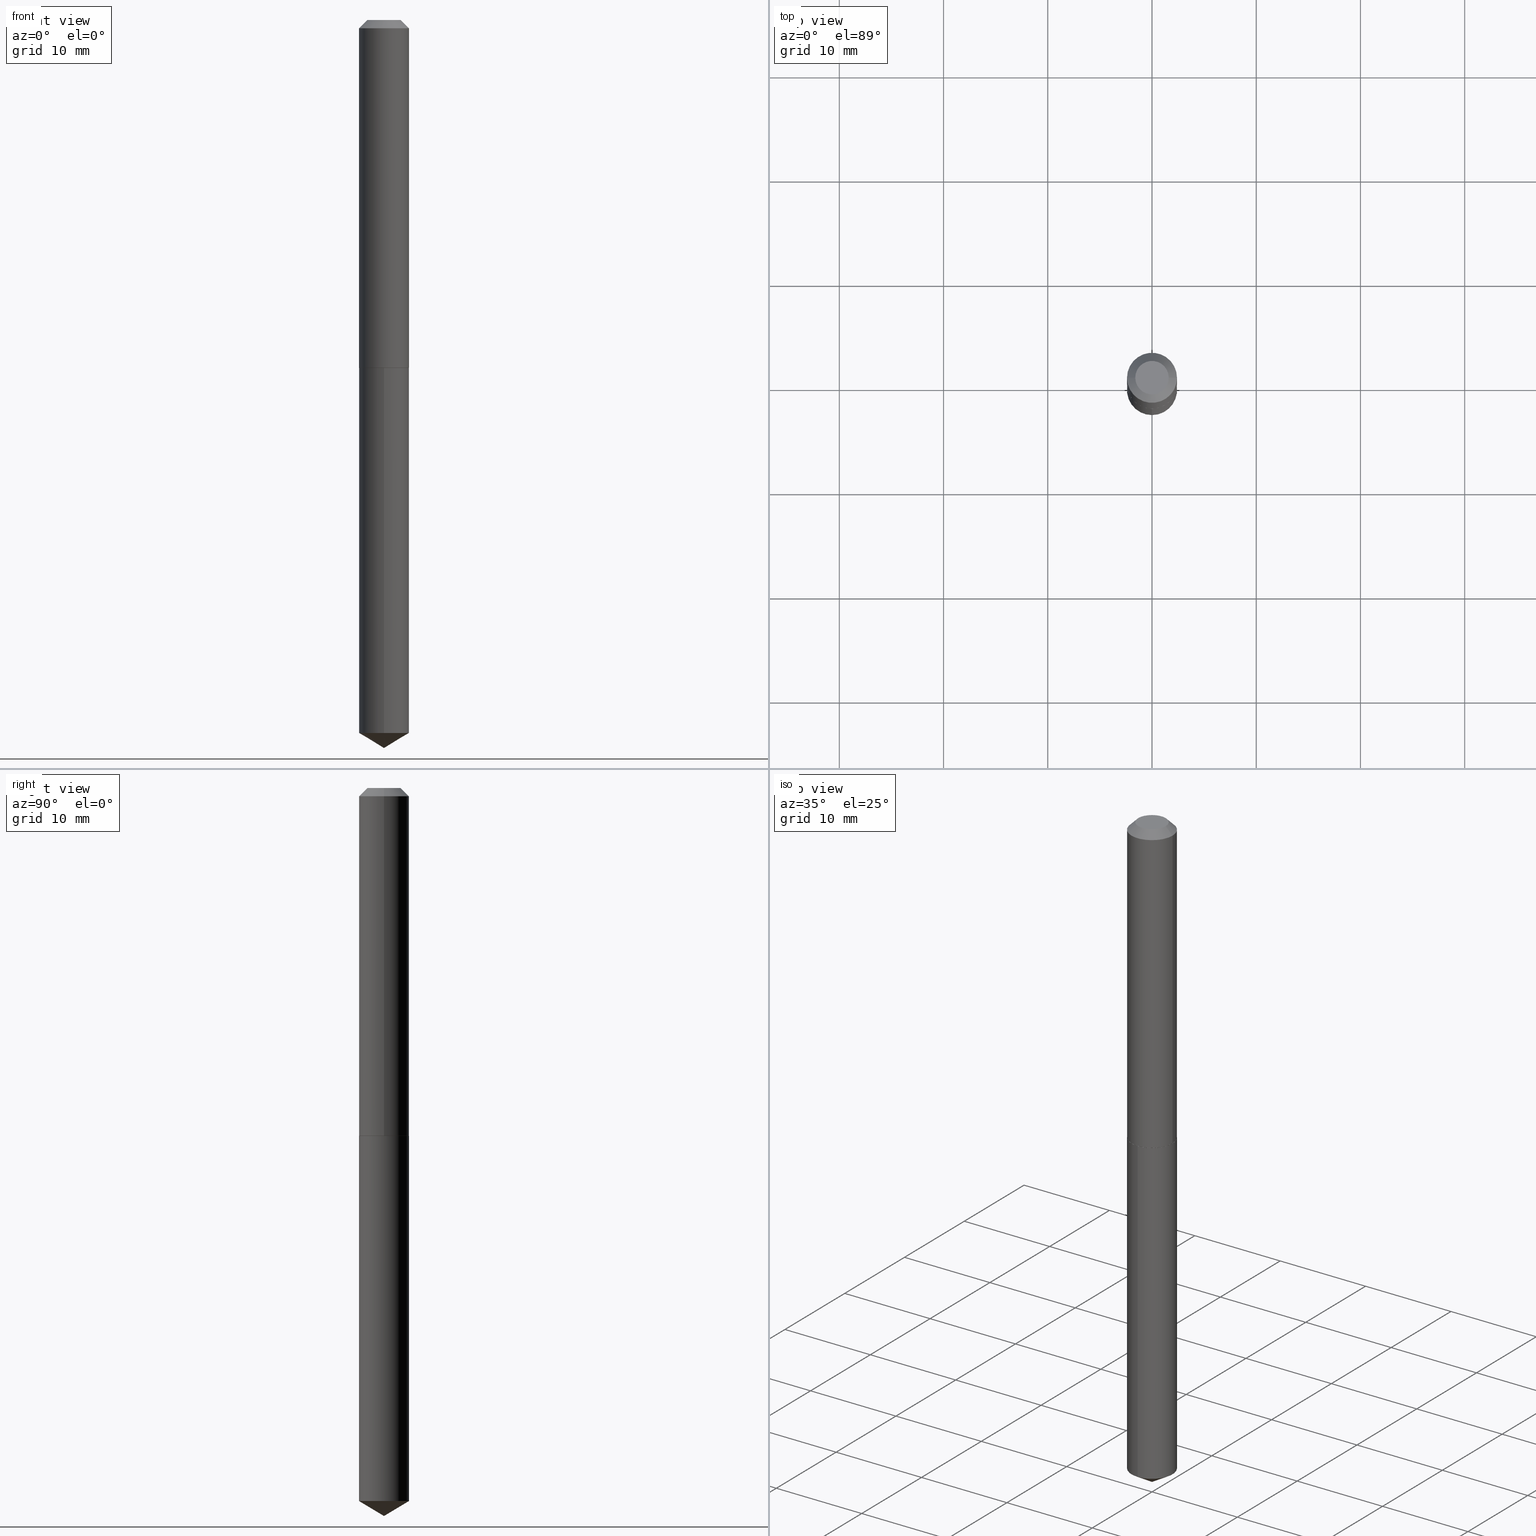
[diagram: canonical four-view strip — front | top / right | iso, engineering-drawing reading convention]
A machine part, canonical four-view strip (front | top / right | iso — engineering-drawing reading convention). The complete STEP part file that produces these views, byte-faithful:
ISO-10303-21;
HEADER;
FILE_DESCRIPTION (( 'STEP AP203' ),
    '1' );
FILE_NAME ('51012.STEP',
    '2024-04-22T18:12:53',
    ( '' ),
    ( '' ),
    'SwSTEP 2.0',
    'SolidWorks 2023',
    '' );
FILE_SCHEMA (( 'CONFIG_CONTROL_DESIGN' ));
ENDSEC;

DATA;
#1 = ORIENTED_EDGE ( 'NONE', *, *, #254, .T. ) ;
#2 = VERTEX_POINT ( 'NONE', #276 ) ;
#3 = VERTEX_POINT ( 'NONE', #121 ) ;
#4 = DIRECTION ( 'NONE',  ( 1.000000000000000000, -6.982962677686267499E-15, 4.876183683204856601E-29 ) ) ;
#5 = AXIS2_PLACEMENT_3D ( 'NONE', #156, #344, #281 ) ;
#6 = DIRECTION ( 'NONE',  ( -6.982962677686265922E-15, -1.000000000000000000, 5.781688875479922944E-15 ) ) ;
#7 = CC_DESIGN_PERSON_AND_ORGANIZATION_ASSIGNMENT ( #258, #351, ( #373 ) ) ;
#8 = DIRECTION ( 'NONE',  ( 2.445468806185136597E-29, -3.491481338843145583E-15, -1.000000000000000000 ) ) ;
#9 = DIRECTION ( 'NONE',  ( -2.445468806185136597E-29, 3.491481338843145583E-15, 1.000000000000000000 ) ) ;
#10 = FACE_OUTER_BOUND ( 'NONE', #274, .T. ) ;
#11 = DIRECTION ( 'NONE',  ( 0.7071067811866199593, -2.468850131083015945E-15, 0.7071067811864750752 ) ) ;
#12 = DIRECTION ( 'NONE',  ( -6.982962677686264344E-15, -1.000000000000000000, 3.468864327941586720E-15 ) ) ;
#13 = AXIS2_PLACEMENT_3D ( 'NONE', #366, #90, #209 ) ;
#14 = CARTESIAN_POINT ( 'NONE',  ( 0.09450000000000008393, -6.598899730413527051E-16, 4.607987053127163164E-30 ) ) ;
#15 = ADVANCED_FACE ( 'NONE', ( #94 ), #84, .T. ) ;
#16 = DIRECTION ( 'NONE',  ( 1.000000000000000000, -6.982962677686270655E-15, 0.000000000000000000 ) ) ;
#17 =( CONVERSION_BASED_UNIT ( 'INCH', #43 ) LENGTH_UNIT ( ) NAMED_UNIT ( #143 ) );
#18 = DIRECTION ( 'NONE',  ( 0.000000000000000000, 0.000000000000000000, 1.000000000000000000 ) ) ;
#19 = EDGE_CURVE ( 'NONE', #294, #150, #277, .T. ) ;
#20 = VERTEX_POINT ( 'NONE', #246 ) ;
#21 = APPROVAL_STATUS ( 'not_yet_approved' ) ;
#22 = ORIENTED_EDGE ( 'NONE', *, *, #77, .T. ) ;
#23 = DIRECTION ( 'NONE',  ( 1.000000000000000000, 0.000000000000000000, 0.000000000000000000 ) ) ;
#24 = ORIENTED_EDGE ( 'NONE', *, *, #287, .F. ) ;
#25 = CC_DESIGN_PERSON_AND_ORGANIZATION_ASSIGNMENT ( #223, #356, ( #191 ) ) ;
#26 = VERTEX_POINT ( 'NONE', #187 ) ;
#27 = CONICAL_SURFACE ( 'NONE', #132, 0.09450000000000013944, 0.7853981633975507526 ) ;
#28 = AXIS2_PLACEMENT_3D ( 'NONE', #68, #314, #182 ) ;
#29 = EDGE_LOOP ( 'NONE', ( #387, #295, #1, #80 ) ) ;
#30 = CARTESIAN_POINT ( 'NONE',  ( 0.000000000000000000, 0.000000000000000000, 0.000000000000000000 ) ) ;
#31 = ORIENTED_EDGE ( 'NONE', *, *, #266, .F. ) ;
#32 = LINE ( 'NONE', #211, #296 ) ;
#33 = CARTESIAN_POINT ( 'NONE',  ( 6.725033957920020954E-29, -9.601582967002698114E-15, -2.750000000000000000 ) ) ;
#34 = CARTESIAN_POINT ( 'NONE',  ( 3.213346011327268506E-29, -4.587806479239892817E-15, -1.313999999999999613 ) ) ;
#35 = AXIS2_PLACEMENT_3D ( 'NONE', #98, #313, #40 ) ;
#36 = CARTESIAN_POINT ( 'NONE',  ( 0.09450000000000013944, -5.245950711611824906E-15, -1.313500000000000112 ) ) ;
#37 = DIRECTION ( 'NONE',  ( -2.445415660206723986E-29, 3.491557446909113942E-15, 1.000000000000000000 ) ) ;
#38 = FACE_OUTER_BOUND ( 'NONE', #301, .T. ) ;
#39 = DIRECTION ( 'NONE',  ( -2.445415660206723705E-29, 3.491557446909113942E-15, 1.000000000000000000 ) ) ;
#40 = DIRECTION ( 'NONE',  ( 1.000000000000000000, -6.982962677686265922E-15, 0.000000000000000000 ) ) ;
#41 = CC_DESIGN_DATE_AND_TIME_ASSIGNMENT ( #220, #227, ( #373 ) ) ;
#42 = CLOSED_SHELL ( 'NONE', ( #340, #181, #249, #348, #368, #15, #81, #236 ) ) ;
#43 = LENGTH_MEASURE_WITH_UNIT ( LENGTH_MEASURE( 0.02539999999999999897 ), #352 );
#44 = CIRCLE ( 'NONE', #268, 0.09449999999999998679 ) ;
#45 = APPROVAL_PERSON_ORGANIZATION ( #195, #125, #324 ) ;
#46 = APPROVAL_ROLE ( '' ) ;
#47 = DIRECTION ( 'NONE',  ( 2.438088387897960049E-29, -3.491481338843145188E-15, -1.000000000000000000 ) ) ;
#48 = ORIENTED_EDGE ( 'NONE', *, *, #218, .F. ) ;
#49 = CC_DESIGN_PERSON_AND_ORGANIZATION_ASSIGNMENT ( #318, #257, ( #171 ) ) ;
#50 = CARTESIAN_POINT ( 'NONE',  ( -0.09449999999999998679, 5.507811812025032100E-16, -0.03125000000000019429 ) ) ;
#51 = PRODUCT_DEFINITION_SHAPE ( 'NONE', 'NONE',  #191 ) ;
#52 = EDGE_LOOP ( 'NONE', ( #54, #307, #48, #24 ) ) ;
#53 = ORIENTED_EDGE ( 'NONE', *, *, #278, .T. ) ;
#54 = ORIENTED_EDGE ( 'NONE', *, *, #136, .T. ) ;
#55 = AXIS2_PLACEMENT_3D ( 'NONE', #146, #141, #82 ) ;
#56 = CARTESIAN_POINT ( 'NONE',  ( -0.09450000000000008393, 6.714628852932952720E-16, -4.648393660290889834E-30 ) ) ;
#57 = CIRCLE ( 'NONE', #263, 0.09400000000000041656 ) ;
#58 = CARTESIAN_POINT ( 'NONE',  ( 3.212123276924177386E-29, -4.586060738570472102E-15, -1.313500000000000112 ) ) ;
#59 = ORIENTED_EDGE ( 'NONE', *, *, #139, .F. ) ;
#60 = CARTESIAN_POINT ( 'NONE',  ( 2.994835545909338206E-48, -4.275831445896990567E-34, -1.224646799147357958E-19 ) ) ;
#61 = DIRECTION ( 'NONE',  ( -1.000000000000000000, 6.982962677686266711E-15, 0.000000000000000000 ) ) ;
#62 = EDGE_CURVE ( 'NONE', #78, #20, #32, .T. ) ;
#63 = CARTESIAN_POINT ( 'NONE',  ( 7.642090019328598283E-31, -1.091087918388489651E-16, -0.03125000000000019429 ) ) ;
#64 = DIRECTION ( 'NONE',  ( 1.000000000000000000, -6.982962677686265922E-15, 0.000000000000000000 ) ) ;
#65 = FACE_OUTER_BOUND ( 'NONE', #83, .T. ) ;
#66 = EDGE_LOOP ( 'NONE', ( #147, #177, #334, #59 ) ) ;
#67 = ADVANCED_FACE ( 'NONE', ( #241 ), #92, .T. ) ;
#68 = CARTESIAN_POINT ( 'NONE',  ( 3.213346011327269067E-29, -4.587806479239893606E-15, -1.314000000000000057 ) ) ;
#69 = DATE_AND_TIME ( #166, #327 ) ;
#70 = APPROVAL ( #131, 'UNSPECIFIED' ) ;
#71 = PERSON_AND_ORGANIZATION ( #233, #224 ) ;
#72 = DIRECTION ( 'NONE',  ( -2.445468806185136597E-29, 3.491481338843145583E-15, 1.000000000000000000 ) ) ;
#73 = COORDINATED_UNIVERSAL_TIME_OFFSET ( 5, 0, .BEHIND. ) ;
#74 = AXIS2_PLACEMENT_3D ( 'NONE', #60, #304, #4 ) ;
#75 = ORIENTED_EDGE ( 'NONE', *, *, #139, .T. ) ;
#76 = CIRCLE ( 'NONE', #154, 0.09449999999999998679 ) ;
#77 = EDGE_CURVE ( 'NONE', #20, #273, #159, .T. ) ;
#78 = VERTEX_POINT ( 'NONE', #337 ) ;
#79 = LINE ( 'NONE', #50, #284 ) ;
#80 = ORIENTED_EDGE ( 'NONE', *, *, #326, .T. ) ;
#81 = ADVANCED_FACE ( 'NONE', ( #309 ), #120, .T. ) ;
#82 = DIRECTION ( 'NONE',  ( 6.982962677686265922E-15, 1.000000000000000000, -3.491557446909113942E-15 ) ) ;
#83 = EDGE_LOOP ( 'NONE', ( #302, #357 ) ) ;
#84 = CYLINDRICAL_SURFACE ( 'NONE', #240, 0.09450000000000008393 ) ;
#85 = CIRCLE ( 'NONE', #383, 0.09449999999999998679 ) ;
#86 = ORIENTED_EDGE ( 'NONE', *, *, #254, .F. ) ;
#87 = DIRECTION ( 'NONE',  ( -5.985567269335945224E-15, -0.8571673007021108903, 0.5150380749100562650 ) ) ;
#88 = DIRECTION ( 'NONE',  ( -2.445415660206723986E-29, 3.491557446909113942E-15, 1.000000000000000000 ) ) ;
#89 = EDGE_CURVE ( 'NONE', #294, #2, #145, .T. ) ;
#90 = DIRECTION ( 'NONE',  ( -2.445415660206723986E-29, 3.491557446909113942E-15, 1.000000000000000000 ) ) ;
#91 = CARTESIAN_POINT ( 'NONE',  ( -0.09400000000000041656, -3.917247080451286059E-15, -1.313999999999999613 ) ) ;
#92 = CYLINDRICAL_SURFACE ( 'NONE', #163, 0.09449999999999998679 ) ;
#93 = MANIFOLD_SOLID_BREP ( 'Body-Move/Copy2[2]', #42 ) ;
#94 = FACE_OUTER_BOUND ( 'NONE', #298, .T. ) ;
#95 = EDGE_CURVE ( 'NONE', #330, #204, #180, .T. ) ;
#96 = CARTESIAN_POINT ( 'NONE',  ( 6.724893065568490610E-29, -9.601782979000062649E-15, -2.750000000000000000 ) ) ;
#97 = APPROVAL_PERSON_ORGANIZATION ( #317, #119, #192 ) ;
#98 = CARTESIAN_POINT ( 'NONE',  ( 3.212123276924177386E-29, -4.586060738570472102E-15, -1.313500000000000112 ) ) ;
#99 = DIRECTION ( 'NONE',  ( -2.445468806185136877E-29, 3.491481338843145188E-15, 1.000000000000000000 ) ) ;
#100 = COORDINATED_UNIVERSAL_TIME_OFFSET ( 5, 0, .BEHIND. ) ;
#101 = FACE_OUTER_BOUND ( 'NONE', #303, .T. ) ;
#102 = CONICAL_SURFACE ( 'NONE', #152, 65.52281426576857370, 1.029744258676655422 ) ;
#103 = DATE_AND_TIME ( #320, #110 ) ;
#104 = AXIS2_PLACEMENT_3D ( 'NONE', #247, #122, #130 ) ;
#105 = PERSON_AND_ORGANIZATION_ROLE ( 'design_supplier' ) ;
#106 = DATE_AND_TIME ( #133, #256 ) ;
#107 = COORDINATED_UNIVERSAL_TIME_OFFSET ( 5, 0, .BEHIND. ) ;
#108 = CC_DESIGN_PERSON_AND_ORGANIZATION_ASSIGNMENT ( #381, #197, ( #172 ) ) ;
#109 = EDGE_LOOP ( 'NONE', ( #325, #114, #363, #335 ) ) ;
#110 = LOCAL_TIME ( 14, 12, 53.00000000000000000, #293 ) ;
#111 = APPROVAL_DATE_TIME ( #261, #125 ) ;
#112 = AXIS2_PLACEMENT_3D ( 'NONE', #225, #47, #382 ) ;
#113 = FACE_OUTER_BOUND ( 'NONE', #52, .T. ) ;
#114 = ORIENTED_EDGE ( 'NONE', *, *, #62, .T. ) ;
#115 = CARTESIAN_POINT ( 'NONE',  ( 3.212123276924177386E-29, -4.586060738570472102E-15, -1.313500000000000112 ) ) ;
#116 = FACE_OUTER_BOUND ( 'NONE', #239, .T. ) ;
#117 = EDGE_LOOP ( 'NONE', ( #230, #299, #329, #86 ) ) ;
#118 = DIRECTION ( 'NONE',  ( 0.7071067811865453523, -7.319954787623248157E-15, -0.7071067811865496822 ) ) ;
#119 = APPROVAL ( #134, 'UNSPECIFIED' ) ;
#120 = CONICAL_SURFACE ( 'NONE', #260, 0.09449999999999998679, 0.7853981633974452814 ) ;
#121 = CARTESIAN_POINT ( 'NONE',  ( 0.09400000000000041656, -5.244204970942404980E-15, -1.313999999999999613 ) ) ;
#122 = DIRECTION ( 'NONE',  ( 2.445468806185136597E-29, -3.491481338843145583E-15, -1.000000000000000000 ) ) ;
#123 = DIRECTION ( 'NONE',  ( -6.982962677686265922E-15, -1.000000000000000000, 2.890844437739961472E-15 ) ) ;
#124 = DIRECTION ( 'NONE',  ( 1.000000000000000000, -6.982962677686266711E-15, 0.000000000000000000 ) ) ;
#125 = APPROVAL ( #21, 'UNSPECIFIED' ) ;
#126 = DIRECTION ( 'NONE',  ( -2.445468806185136597E-29, 3.491481338843145583E-15, 1.000000000000000000 ) ) ;
#127 = DIRECTION ( 'NONE',  ( 1.000000000000000000, -6.982962677686265922E-15, 4.876176775795935793E-29 ) ) ;
#128 = CARTESIAN_POINT ( 'NONE',  ( -6.598899730413198687E-16, -0.09450000000000458034, -1.313999999999999613 ) ) ;
#129 = LOCAL_TIME ( 14, 12, 53.00000000000000000, #231 ) ;
#130 = DIRECTION ( 'NONE',  ( -1.000000000000000000, 6.982962677686266711E-15, 0.000000000000000000 ) ) ;
#131 = APPROVAL_STATUS ( 'not_yet_approved' ) ;
#132 = AXIS2_PLACEMENT_3D ( 'NONE', #58, #140, #264 ) ;
#133 = CALENDAR_DATE ( 2024, 22, 4 ) ;
#134 = APPROVAL_STATUS ( 'not_yet_approved' ) ;
#135 = FACE_OUTER_BOUND ( 'NONE', #328, .T. ) ;
#136 = EDGE_CURVE ( 'NONE', #3, #322, #378, .T. ) ;
#137 = CIRCLE ( 'NONE', #5, 0.06324999999999998679 ) ;
#138 = CALENDAR_DATE ( 2024, 22, 4 ) ;
#139 = EDGE_CURVE ( 'NONE', #206, #26, #198, .T. ) ;
#140 = DIRECTION ( 'NONE',  ( -2.445468806185136597E-29, 3.491481338843145583E-15, 1.000000000000000000 ) ) ;
#141 = DIRECTION ( 'NONE',  ( 2.445415660206723425E-29, -3.491557446909113942E-15, -1.000000000000000000 ) ) ;
#142 = VECTOR ( 'NONE', #216, 39.37007874015748143 ) ;
#143 = DIMENSIONAL_EXPONENTS ( 1.000000000000000000, 0.000000000000000000, 0.000000000000000000, 0.000000000000000000, 0.000000000000000000, 0.000000000000000000, 0.000000000000000000 ) ;
#144 = ORIENTED_EDGE ( 'NONE', *, *, #165, .T. ) ;
#145 = LINE ( 'NONE', #148, #228 ) ;
#146 = CARTESIAN_POINT ( 'NONE',  ( 3.213346011327269067E-29, -4.587806479239893606E-15, -1.314000000000000057 ) ) ;
#147 = ORIENTED_EDGE ( 'NONE', *, *, #333, .F. ) ;
#148 = CARTESIAN_POINT ( 'NONE',  ( 0.09449999999999998679, -7.574258526282586471E-16, -0.03125000000000019429 ) ) ;
#149 = EDGE_CURVE ( 'NONE', #206, #179, #331, .T. ) ;
#150 = VERTEX_POINT ( 'NONE', #369 ) ;
#151 = DIRECTION ( 'NONE',  ( -2.445415660206723705E-29, 3.491557446909113942E-15, 1.000000000000000000 ) ) ;
#152 = AXIS2_PLACEMENT_3D ( 'NONE', #221, #343, #186 ) ;
#153 = DIRECTION ( 'NONE',  ( 1.000000000000000000, -6.982962677686270655E-15, 0.000000000000000000 ) ) ;
#154 = AXIS2_PLACEMENT_3D ( 'NONE', #188, #158, #242 ) ;
#155 = EDGE_CURVE ( 'NONE', #78, #204, #85, .T. ) ;
#156 = CARTESIAN_POINT ( 'NONE',  ( 2.994835545909338206E-48, -4.275831445896990567E-34, -1.224646799147357958E-19 ) ) ;
#157 = DIRECTION ( 'NONE',  ( -2.445415660206723986E-29, 3.491557446909113942E-15, 1.000000000000000000 ) ) ;
#158 = DIRECTION ( 'NONE',  ( -2.445415660206723986E-29, 3.491557446909113942E-15, 1.000000000000000000 ) ) ;
#159 = CIRCLE ( 'NONE', #13, 0.09449999999999998679 ) ;
#160 = DIRECTION ( 'NONE',  ( -2.445468806185136597E-29, 3.491481338843145583E-15, 1.000000000000000000 ) ) ;
#161 = ADVANCED_BREP_SHAPE_REPRESENTATION ( '51012', ( #222, #93, #270 ), #390 ) ;
#162 =( NAMED_UNIT ( * ) SI_UNIT ( $, .STERADIAN. ) SOLID_ANGLE_UNIT ( ) );
#163 = AXIS2_PLACEMENT_3D ( 'NONE', #311, #339, #123 ) ;
#164 = VECTOR ( 'NONE', #99, 39.37007874015748143 ) ;
#165 = EDGE_CURVE ( 'NONE', #150, #294, #137, .T. ) ;
#166 = CALENDAR_DATE ( 2024, 22, 4 ) ;
#167 = ORIENTED_EDGE ( 'NONE', *, *, #218, .T. ) ;
#168 = APPROVAL_DATE_TIME ( #103, #70 ) ;
#169 = ORIENTED_EDGE ( 'NONE', *, *, #149, .T. ) ;
#170 = VECTOR ( 'NONE', #244, 39.37007874015748143 ) ;
#171 = PRODUCT_DEFINITION_FORMATION_WITH_SPECIFIED_SOURCE ( 'ANY', '', #172, .NOT_KNOWN. ) ;
#172 = PRODUCT ( '51012', '51012', '', ( #288 ) ) ;
#173 = ORIENTED_EDGE ( 'NONE', *, *, #149, .F. ) ;
#174 = CARTESIAN_POINT ( 'NONE',  ( -0.09449999999999998679, -1.676121879911364540E-15, -0.03125000000000019429 ) ) ;
#175 = ORIENTED_EDGE ( 'NONE', *, *, #326, .F. ) ;
#176 = ADVANCED_FACE ( 'NONE', ( #10 ), #265, .F. ) ;
#177 = ORIENTED_EDGE ( 'NONE', *, *, #386, .T. ) ;
#178 = ORIENTED_EDGE ( 'NONE', *, *, #362, .T. ) ;
#179 = VERTEX_POINT ( 'NONE', #174 ) ;
#180 = LINE ( 'NONE', #214, #248 ) ;
#181 = ADVANCED_FACE ( 'NONE', ( #116 ), #212, .T. ) ;
#182 = DIRECTION ( 'NONE',  ( -6.982962677686265922E-15, -1.000000000000000000, 2.890844437739961472E-15 ) ) ;
#183 = AXIS2_PLACEMENT_3D ( 'NONE', #306, #88, #6 ) ;
#184 = CARTESIAN_POINT ( 'NONE',  ( 6.586108949467517170E-29, -9.403427702638431539E-15, -2.693218671501895756 ) ) ;
#185 = DIRECTION ( 'NONE',  ( 1.000000000000000000, -6.982962677686265922E-15, 0.000000000000000000 ) ) ;
#186 = DIRECTION ( 'NONE',  ( -6.982962677686264344E-15, -1.000000000000000000, 3.468864327941586720E-15 ) ) ;
#187 = CARTESIAN_POINT ( 'NONE',  ( 0.09450000000000013944, -5.245950711611824906E-15, -1.313500000000000112 ) ) ;
#188 = CARTESIAN_POINT ( 'NONE',  ( 3.213346011327269067E-29, -4.587806479239893606E-15, -1.314000000000000057 ) ) ;
#189 = CARTESIAN_POINT ( 'NONE',  ( -0.09450000000000013944, -3.914597853277176436E-15, -1.313500000000000112 ) ) ;
#190 = CIRCLE ( 'NONE', #35, 0.09450000000000013944 ) ;
#191 = PRODUCT_DEFINITION ( 'UNKNOWN', '', #171, #297 ) ;
#192 = APPROVAL_ROLE ( '' ) ;
#193 = CALENDAR_DATE ( 2024, 22, 4 ) ;
#194 = ADVANCED_FACE ( 'NONE', ( #101 ), #102, .T. ) ;
#195 = PERSON_AND_ORGANIZATION ( #233, #224 ) ;
#196 = ORIENTED_EDGE ( 'NONE', *, *, #266, .T. ) ;
#197 = PERSON_AND_ORGANIZATION_ROLE ( 'design_owner' ) ;
#198 = CIRCLE ( 'NONE', #315, 0.09450000000000013944 ) ;
#199 = CC_DESIGN_SECURITY_CLASSIFICATION ( #373, ( #171 ) ) ;
#200 = ORIENTED_EDGE ( 'NONE', *, *, #62, .F. ) ;
#201 = ORIENTED_EDGE ( 'NONE', *, *, #362, .F. ) ;
#202 = ORIENTED_EDGE ( 'NONE', *, *, #95, .F. ) ;
#203 = CARTESIAN_POINT ( 'NONE',  ( 7.642090019328598283E-31, -1.091087918388489651E-16, -0.03125000000000019429 ) ) ;
#204 = VERTEX_POINT ( 'NONE', #310 ) ;
#206 = VERTEX_POINT ( 'NONE', #279 ) ;
#205 = CC_DESIGN_APPROVAL ( #70, ( #191 ) ) ;
#207 = LINE ( 'NONE', #33, #235 ) ;
#208 = ADVANCED_FACE ( 'NONE', ( #38 ), #359, .T. ) ;
#209 = DIRECTION ( 'NONE',  ( -6.982962677686265922E-15, -1.000000000000000000, 2.890844437739961472E-15 ) ) ;
#210 = CARTESIAN_POINT ( 'NONE',  ( 3.212123276924177386E-29, -4.586060738570472102E-15, -1.313500000000000112 ) ) ;
#211 = CARTESIAN_POINT ( 'NONE',  ( 6.714628852933266292E-16, 0.09449999999999539324, -1.314000000000000279 ) ) ;
#212 = CYLINDRICAL_SURFACE ( 'NONE', #365, 0.09450000000000008393 ) ;
#213 = VECTOR ( 'NONE', #11, 39.37007874015748143 ) ;
#214 = CARTESIAN_POINT ( 'NONE',  ( 6.724893065568490610E-29, -9.601782979000064227E-15, -2.750000000000000000 ) ) ;
#215 = APPROVAL_PERSON_ORGANIZATION ( #291, #70, #46 ) ;
#216 = DIRECTION ( 'NONE',  ( -0.7071067811866199593, 7.493145998870616062E-15, 0.7071067811864750752 ) ) ;
#217 = FACE_OUTER_BOUND ( 'NONE', #267, .T. ) ;
#218 = EDGE_CURVE ( 'NONE', #26, #206, #190, .T. ) ;
#219 = CARTESIAN_POINT ( 'NONE',  ( 0.000000000000000000, 0.000000000000000000, 0.000000000000000000 ) ) ;
#220 = DATE_AND_TIME ( #193, #379 ) ;
#221 = CARTESIAN_POINT ( 'NONE',  ( -8.955124419536879538E-28, 1.278612086375936657E-13, 36.62007874015748143 ) ) ;
#222 = MANIFOLD_SOLID_BREP ( 'Body-Move/Copy2[1]', #355 ) ;
#223 = PERSON_AND_ORGANIZATION ( #233, #224 ) ;
#224 = ORGANIZATION ( 'UNSPECIFIED', 'UNSPECIFIED', '' ) ;
#225 = CARTESIAN_POINT ( 'NONE',  ( 1.497417772954669103E-48, -2.137915722948495283E-34, -6.123233995736789792E-20 ) ) ;
#226 = SECURITY_CLASSIFICATION_LEVEL ( 'unclassified' ) ;
#227 = DATE_TIME_ROLE ( 'classification_date' ) ;
#228 = VECTOR ( 'NONE', #118, 39.37007874015748143 ) ;
#229 = CONICAL_SURFACE ( 'NONE', #316, 0.09450000000000013944, 0.7853981633975507526 ) ;
#230 = ORIENTED_EDGE ( 'NONE', *, *, #19, .F. ) ;
#231 = COORDINATED_UNIVERSAL_TIME_OFFSET ( 5, 0, .BEHIND. ) ;
#232 = PRODUCT_RELATED_PRODUCT_CATEGORY ( 'detail', '', ( #172 ) ) ;
#233 = PERSON ( 'UNSPECIFIED', 'UNSPECIFIED', 'UNSPECIFIED', ('UNSPECIFIED'), ('UNSPECIFIED'), ('UNSPECIFIED') ) ;
#234 = ORIENTED_EDGE ( 'NONE', *, *, #155, .T. ) ;
#235 = VECTOR ( 'NONE', #283, 39.37007874015748143 ) ;
#236 = ADVANCED_FACE ( 'NONE', ( #135 ), #354, .F. ) ;
#237 = ORIENTED_EDGE ( 'NONE', *, *, #155, .F. ) ;
#238 = DIRECTION ( 'NONE',  ( -6.982962677686265922E-15, -1.000000000000000000, 5.781688875479922944E-15 ) ) ;
#239 = EDGE_LOOP ( 'NONE', ( #167, #169, #360, #201 ) ) ;
#240 = AXIS2_PLACEMENT_3D ( 'NONE', #30, #126, #361 ) ;
#241 = FACE_OUTER_BOUND ( 'NONE', #109, .T. ) ;
#242 = DIRECTION ( 'NONE',  ( -6.982962677686265922E-15, -1.000000000000000000, 2.890844437739961472E-15 ) ) ;
#243 = EDGE_CURVE ( 'NONE', #2, #179, #255, .T. ) ;
#244 = DIRECTION ( 'NONE',  ( -2.445468806185136877E-29, 3.491481338843145188E-15, 1.000000000000000000 ) ) ;
#245 = FACE_OUTER_BOUND ( 'NONE', #117, .T. ) ;
#246 = CARTESIAN_POINT ( 'NONE',  ( 6.714628852933606489E-16, 0.09449999999999539324, -1.314000000000000279 ) ) ;
#247 = CARTESIAN_POINT ( 'NONE',  ( 7.642090019328598283E-31, -1.091087918388489651E-16, -0.03125000000000019429 ) ) ;
#248 = VECTOR ( 'NONE', #87, 39.37007874015748854 ) ;
#249 = ADVANCED_FACE ( 'NONE', ( #113 ), #27, .T. ) ;
#250 = LINE ( 'NONE', #189, #142 ) ;
#251 = CARTESIAN_POINT ( 'NONE',  ( -8.955124419536879538E-28, 1.278612086375936657E-13, 36.62007874015748143 ) ) ;
#252 = APPLICATION_PROTOCOL_DEFINITION ( 'international standard', 'config_control_design', 1994, #292 ) ;
#253 = DIRECTION ( 'NONE',  ( -2.445468806185136597E-29, 3.491481338843145583E-15, 1.000000000000000000 ) ) ;
#254 = EDGE_CURVE ( 'NONE', #150, #179, #79, .T. ) ;
#255 = CIRCLE ( 'NONE', #321, 0.09449999999999998679 ) ;
#256 = LOCAL_TIME ( 14, 12, 53.00000000000000000, #107 ) ;
#257 = PERSON_AND_ORGANIZATION_ROLE ( 'creator' ) ;
#258 = PERSON_AND_ORGANIZATION ( #233, #224 ) ;
#259 = CARTESIAN_POINT ( 'NONE',  ( 0.000000000000000000, 0.000000000000000000, 0.000000000000000000 ) ) ;
#260 = AXIS2_PLACEMENT_3D ( 'NONE', #203, #8, #61 ) ;
#261 = DATE_AND_TIME ( #138, #129 ) ;
#262 = EDGE_CURVE ( 'NONE', #204, #78, #389, .T. ) ;
#263 = AXIS2_PLACEMENT_3D ( 'NONE', #308, #160, #16 ) ;
#264 = DIRECTION ( 'NONE',  ( 1.000000000000000000, -6.982962677686265922E-15, 0.000000000000000000 ) ) ;
#265 = PLANE ( 'NONE',  #55 ) ;
#266 = EDGE_CURVE ( 'NONE', #330, #78, #207, .T. ) ;
#267 = EDGE_LOOP ( 'NONE', ( #200, #234, #53, #388 ) ) ;
#268 = AXIS2_PLACEMENT_3D ( 'NONE', #63, #9, #124 ) ;
#269 = UNCERTAINTY_MEASURE_WITH_UNIT (LENGTH_MEASURE( 1.000000000000000082E-05 ), #17, 'distance_accuracy_value', 'NONE');
#270 = AXIS2_PLACEMENT_3D ( 'NONE', #259, #18, #23 ) ;
#271 = ORIENTED_EDGE ( 'NONE', *, *, #262, .F. ) ;
#272 = DIRECTION ( 'NONE',  ( -2.445468806185136597E-29, 3.491481338843145583E-15, 1.000000000000000000 ) ) ;
#273 = VERTEX_POINT ( 'NONE', #128 ) ;
#274 = EDGE_LOOP ( 'NONE', ( #371, #22 ) ) ;
#275 = ORIENTED_EDGE ( 'NONE', *, *, #19, .T. ) ;
#276 = CARTESIAN_POINT ( 'NONE',  ( 0.09449999999999998679, -7.689987648802011155E-16, -0.03125000000000019429 ) ) ;
#277 = CIRCLE ( 'NONE', #74, 0.06324999999999998679 ) ;
#278 = EDGE_CURVE ( 'NONE', #204, #273, #312, .T. ) ;
#279 = CARTESIAN_POINT ( 'NONE',  ( -0.09450000000000013944, -3.914597853277176436E-15, -1.313500000000000112 ) ) ;
#280 = DIRECTION ( 'NONE',  ( -2.445468806185136597E-29, 3.491481338843145583E-15, 1.000000000000000000 ) ) ;
#281 = DIRECTION ( 'NONE',  ( 1.000000000000000000, -6.982962677686267499E-15, 4.876183683204856601E-29 ) ) ;
#282 = LINE ( 'NONE', #36, #213 ) ;
#283 = DIRECTION ( 'NONE',  ( 6.090539988449783169E-15, 0.8571673007021145541, 0.5150380749100503808 ) ) ;
#284 = VECTOR ( 'NONE', #374, 39.37007874015748143 ) ;
#285 = LINE ( 'NONE', #14, #164 ) ;
#286 = APPLICATION_PROTOCOL_DEFINITION ( 'international standard', 'config_control_design', 1994, #364 ) ;
#287 = EDGE_CURVE ( 'NONE', #3, #26, #282, .T. ) ;
#288 = MECHANICAL_CONTEXT ( 'NONE', #292, 'mechanical' ) ;
#289 = AXIS2_PLACEMENT_3D ( 'NONE', #251, #157, #12 ) ;
#290 = CONICAL_SURFACE ( 'NONE', #104, 0.09449999999999998679, 0.7853981633974452814 ) ;
#291 = PERSON_AND_ORGANIZATION ( #233, #224 ) ;
#292 = APPLICATION_CONTEXT ( 'configuration controlled 3d designs of mechanical parts and assemblies' ) ;
#293 = COORDINATED_UNIVERSAL_TIME_OFFSET ( 5, 0, .BEHIND. ) ;
#294 = VERTEX_POINT ( 'NONE', #372 ) ;
#295 = ORIENTED_EDGE ( 'NONE', *, *, #165, .F. ) ;
#296 = VECTOR ( 'NONE', #151, 39.37007874015748143 ) ;
#297 = DESIGN_CONTEXT ( 'detailed design', #364, 'design' ) ;
#298 = EDGE_LOOP ( 'NONE', ( #173, #75, #178, #175 ) ) ;
#299 = ORIENTED_EDGE ( 'NONE', *, *, #89, .T. ) ;
#300 = AXIS2_PLACEMENT_3D ( 'NONE', #336, #345, #127 ) ;
#301 = EDGE_LOOP ( 'NONE', ( #202, #196, #271 ) ) ;
#302 = ORIENTED_EDGE ( 'NONE', *, *, #136, .F. ) ;
#303 = EDGE_LOOP ( 'NONE', ( #31, #385, #237 ) ) ;
#304 = DIRECTION ( 'NONE',  ( -2.445468806185136597E-29, 3.491481338843145583E-15, 1.000000000000000000 ) ) ;
#305 = CC_DESIGN_DATE_AND_TIME_ASSIGNMENT ( #69, #349, ( #191 ) ) ;
#306 = CARTESIAN_POINT ( 'NONE',  ( 6.586108949467517170E-29, -9.403427702638431539E-15, -2.693218671501895756 ) ) ;
#307 = ORIENTED_EDGE ( 'NONE', *, *, #333, .T. ) ;
#308 = CARTESIAN_POINT ( 'NONE',  ( 3.213346011327268506E-29, -4.587806479239892817E-15, -1.313999999999999613 ) ) ;
#309 = FACE_OUTER_BOUND ( 'NONE', #29, .T. ) ;
#310 = CARTESIAN_POINT ( 'NONE',  ( -6.598899730412861449E-16, -0.09450000000000939593, -2.693218671501894868 ) ) ;
#311 = CARTESIAN_POINT ( 'NONE',  ( 3.213346011327269067E-29, -4.587806479239893606E-15, -1.314000000000000057 ) ) ;
#312 = LINE ( 'NONE', #342, #341 ) ;
#313 = DIRECTION ( 'NONE',  ( -2.445468806185136597E-29, 3.491481338843145583E-15, 1.000000000000000000 ) ) ;
#314 = DIRECTION ( 'NONE',  ( -2.445415660206723986E-29, 3.491557446909113942E-15, 1.000000000000000000 ) ) ;
#315 = AXIS2_PLACEMENT_3D ( 'NONE', #115, #280, #64 ) ;
#316 = AXIS2_PLACEMENT_3D ( 'NONE', #210, #338, #185 ) ;
#317 = PERSON_AND_ORGANIZATION ( #233, #224 ) ;
#318 = PERSON_AND_ORGANIZATION ( #233, #224 ) ;
#319 = DIRECTION ( 'NONE',  ( 1.000000000000000000, -6.982962677686266711E-15, 0.000000000000000000 ) ) ;
#320 = CALENDAR_DATE ( 2024, 22, 4 ) ;
#321 = AXIS2_PLACEMENT_3D ( 'NONE', #350, #72, #319 ) ;
#322 = VERTEX_POINT ( 'NONE', #91 ) ;
#323 = CC_DESIGN_APPROVAL ( #125, ( #373 ) ) ;
#324 = APPROVAL_ROLE ( '' ) ;
#325 = ORIENTED_EDGE ( 'NONE', *, *, #262, .T. ) ;
#326 = EDGE_CURVE ( 'NONE', #179, #2, #44, .T. ) ;
#327 = LOCAL_TIME ( 14, 12, 53.00000000000000000, #100 ) ;
#328 = EDGE_LOOP ( 'NONE', ( #144, #275 ) ) ;
#329 = ORIENTED_EDGE ( 'NONE', *, *, #243, .T. ) ;
#330 = VERTEX_POINT ( 'NONE', #96 ) ;
#331 = LINE ( 'NONE', #56, #170 ) ;
#332 = CC_DESIGN_APPROVAL ( #119, ( #171 ) ) ;
#333 = EDGE_CURVE ( 'NONE', #322, #206, #250, .T. ) ;
#334 = ORIENTED_EDGE ( 'NONE', *, *, #287, .T. ) ;
#335 = ORIENTED_EDGE ( 'NONE', *, *, #278, .F. ) ;
#336 = CARTESIAN_POINT ( 'NONE',  ( 5.879982165716916703E-29, -7.690317306496414299E-16, -1.313999999999999613 ) ) ;
#337 = CARTESIAN_POINT ( 'NONE',  ( 6.714628852933602544E-16, 0.09449999999999056377, -2.693218671501896200 ) ) ;
#338 = DIRECTION ( 'NONE',  ( -2.445468806185136597E-29, 3.491481338843145583E-15, 1.000000000000000000 ) ) ;
#339 = DIRECTION ( 'NONE',  ( -2.445415660206723986E-29, 3.491557446909113942E-15, 1.000000000000000000 ) ) ;
#340 = ADVANCED_FACE ( 'NONE', ( #245 ), #290, .T. ) ;
#341 = VECTOR ( 'NONE', #39, 39.37007874015748143 ) ;
#342 = CARTESIAN_POINT ( 'NONE',  ( -6.598899730413198687E-16, -0.09450000000000458034, -1.313999999999999613 ) ) ;
#343 = DIRECTION ( 'NONE',  ( -2.445415660206723986E-29, 3.491557446909113942E-15, 1.000000000000000000 ) ) ;
#344 = DIRECTION ( 'NONE',  ( -2.445468806185136597E-29, 3.491481338843145583E-15, 1.000000000000000000 ) ) ;
#345 = DIRECTION ( 'NONE',  ( -2.438088387897960049E-29, 3.491481338843145188E-15, 1.000000000000000000 ) ) ;
#346 = CYLINDRICAL_SURFACE ( 'NONE', #28, 0.09449999999999998679 ) ;
#347 = AXIS2_PLACEMENT_3D ( 'NONE', #34, #272, #153 ) ;
#348 = ADVANCED_FACE ( 'NONE', ( #65 ), #370, .F. ) ;
#349 = DATE_TIME_ROLE ( 'creation_date' ) ;
#350 = CARTESIAN_POINT ( 'NONE',  ( 7.642090019328598283E-31, -1.091087918388489651E-16, -0.03125000000000019429 ) ) ;
#351 = PERSON_AND_ORGANIZATION_ROLE ( 'classification_officer' ) ;
#352 =( LENGTH_UNIT ( ) NAMED_UNIT ( * ) SI_UNIT ( $, .METRE. ) );
#353 = CC_DESIGN_PERSON_AND_ORGANIZATION_ASSIGNMENT ( #71, #105, ( #171 ) ) ;
#354 = PLANE ( 'NONE',  #112 ) ;
#355 = CLOSED_SHELL ( 'NONE', ( #67, #208, #194, #376, #176 ) ) ;
#356 = PERSON_AND_ORGANIZATION_ROLE ( 'creator' ) ;
#357 = ORIENTED_EDGE ( 'NONE', *, *, #386, .F. ) ;
#358 = EDGE_CURVE ( 'NONE', #273, #20, #76, .T. ) ;
#359 = CONICAL_SURFACE ( 'NONE', #289, 65.52281426576857370, 1.029744258676655422 ) ;
#360 = ORIENTED_EDGE ( 'NONE', *, *, #243, .F. ) ;
#361 = DIRECTION ( 'NONE',  ( 1.000000000000000000, -6.982962677686265922E-15, 4.876176775795935793E-29 ) ) ;
#362 = EDGE_CURVE ( 'NONE', #26, #2, #285, .T. ) ;
#363 = ORIENTED_EDGE ( 'NONE', *, *, #358, .F. ) ;
#364 = APPLICATION_CONTEXT ( 'configuration controlled 3d designs of mechanical parts and assemblies' ) ;
#365 = AXIS2_PLACEMENT_3D ( 'NONE', #219, #253, #377 ) ;
#366 = CARTESIAN_POINT ( 'NONE',  ( 3.213346011327269067E-29, -4.587806479239893606E-15, -1.314000000000000057 ) ) ;
#367 = FACE_OUTER_BOUND ( 'NONE', #66, .T. ) ;
#368 = ADVANCED_FACE ( 'NONE', ( #367 ), #229, .T. ) ;
#369 = CARTESIAN_POINT ( 'NONE',  ( -0.06324999999999998679, 4.962267852830797444E-16, -1.224646799180151249E-19 ) ) ;
#370 = PLANE ( 'NONE',  #300 ) ;
#371 = ORIENTED_EDGE ( 'NONE', *, *, #358, .T. ) ;
#372 = CARTESIAN_POINT ( 'NONE',  ( 0.06324999999999998679, -5.956761754936540147E-16, -1.224646799111092457E-19 ) ) ;
#373 = SECURITY_CLASSIFICATION ( '', '', #226 ) ;
#374 = DIRECTION ( 'NONE',  ( -0.7071067811865453523, 2.468850131082234184E-15, -0.7071067811865496822 ) ) ;
#375 = APPROVAL_DATE_TIME ( #106, #119 ) ;
#376 = ADVANCED_FACE ( 'NONE', ( #217 ), #346, .T. ) ;
#377 = DIRECTION ( 'NONE',  ( 1.000000000000000000, -6.982962677686265922E-15, 4.876176775795935793E-29 ) ) ;
#378 = CIRCLE ( 'NONE', #347, 0.09400000000000041656 ) ;
#379 = LOCAL_TIME ( 14, 12, 53.00000000000000000, #73 ) ;
#380 =( NAMED_UNIT ( * ) PLANE_ANGLE_UNIT ( ) SI_UNIT ( $, .RADIAN. ) );
#381 = PERSON_AND_ORGANIZATION ( #233, #224 ) ;
#382 = DIRECTION ( 'NONE',  ( -1.000000000000000000, 6.982962677686265922E-15, -4.876176775795935793E-29 ) ) ;
#383 = AXIS2_PLACEMENT_3D ( 'NONE', #184, #37, #238 ) ;
#384 = SHAPE_DEFINITION_REPRESENTATION ( #51, #161 ) ;
#385 = ORIENTED_EDGE ( 'NONE', *, *, #95, .T. ) ;
#386 = EDGE_CURVE ( 'NONE', #322, #3, #57, .T. ) ;
#387 = ORIENTED_EDGE ( 'NONE', *, *, #89, .F. ) ;
#388 = ORIENTED_EDGE ( 'NONE', *, *, #77, .F. ) ;
#389 = CIRCLE ( 'NONE', #183, 0.09449999999999998679 ) ;
#390 =( GEOMETRIC_REPRESENTATION_CONTEXT ( 3 ) GLOBAL_UNCERTAINTY_ASSIGNED_CONTEXT ( ( #269 ) ) GLOBAL_UNIT_ASSIGNED_CONTEXT ( ( #17, #380, #162 ) ) REPRESENTATION_CONTEXT ( 'NONE', 'WORKASPACE' ) );
ENDSEC;
END-ISO-10303-21;
